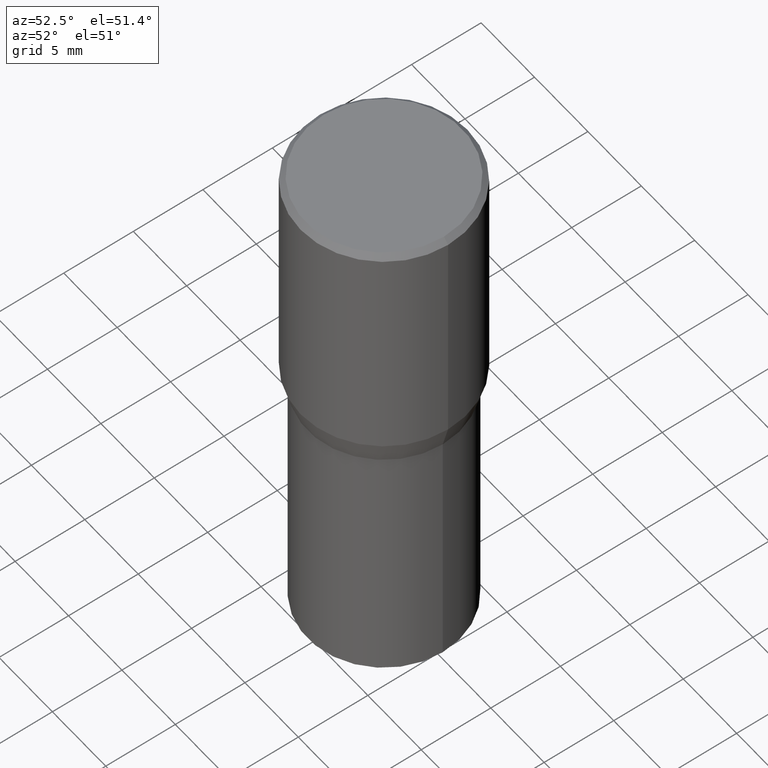
[diagram: clean part render]
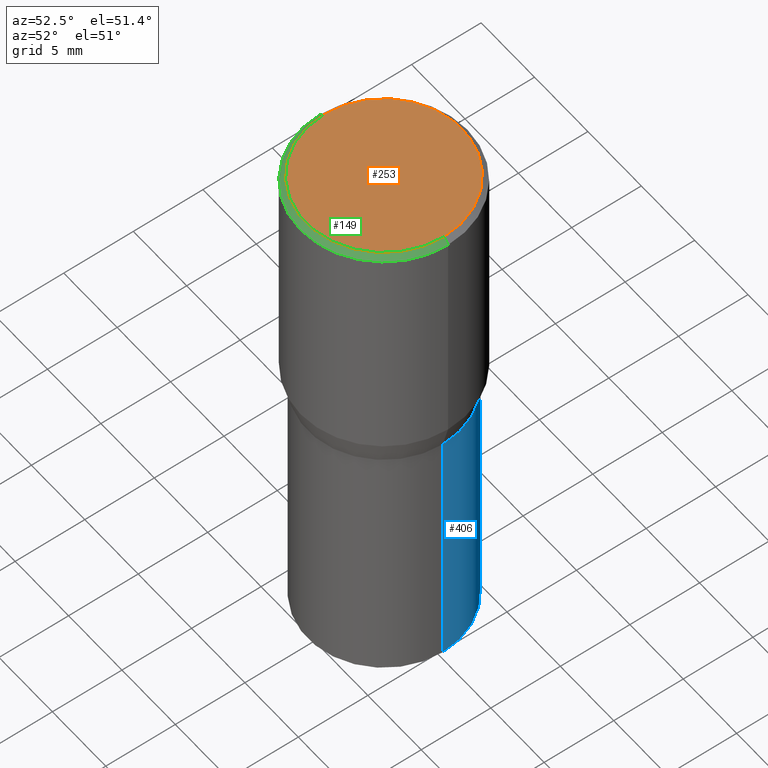
[diagram: same view with three faces highlighted in distinct colors, each labeled with its STEP entity id]
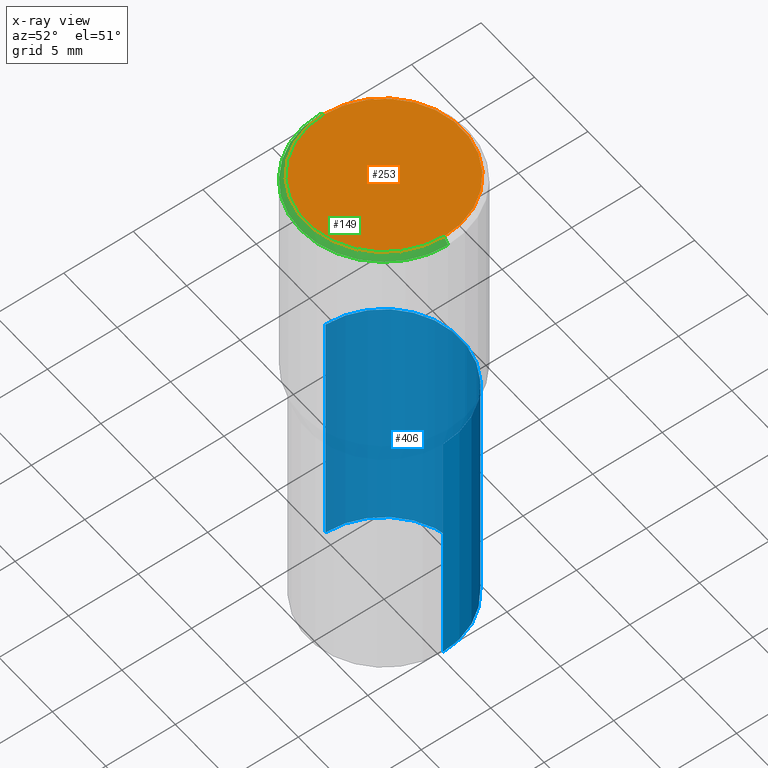
[diagram: x-ray of the same camera — body ghosted, the three highlighted faces saturated]
A machine part, auxiliary view with three faces highlighted in distinct colors.
The next image is the same camera in x-ray (body ghosted, the three faces saturated) — at least one of them is partly hidden behind the body in this view.
Their STEP definitions:

[orange] entity #253 — the highlighted planar face has unit normal (0, -0, -1).
#11 = CARTESIAN_POINT ( 'NONE',  ( 0.2212000000000000077, -1.595182002131672613E-15, 4.701447564593453210E-17 ) ) ;
#47 = FACE_OUTER_BOUND ( 'NONE', #426, .T. ) ;
#94 = VERTEX_POINT ( 'NONE', #138 ) ;
#106 = CIRCLE ( 'NONE', #328, 0.2212000000000000077 ) ;
#122 = DIRECTION ( 'NONE',  ( -2.445468806185136597E-29, 3.491481338843145583E-15, 1.000000000000000000 ) ) ;
#138 = CARTESIAN_POINT ( 'NONE',  ( -0.2212000000000000077, 1.570817454345525709E-15, 4.701447564591265970E-17 ) ) ;
#153 = DIRECTION ( 'NONE',  ( 1.000000000000000000, -6.982962677686267499E-15, 4.877828720335458505E-29 ) ) ;
#171 = ORIENTED_EDGE ( 'NONE', *, *, #303, .T. ) ;
#188 = DIRECTION ( 'NONE',  ( 2.438088387897960049E-29, -3.491481338843145188E-15, -1.000000000000000000 ) ) ;
#195 = DIRECTION ( 'NONE',  ( -2.445468806185136597E-29, 3.491481338843145583E-15, 1.000000000000000000 ) ) ;
#199 = AXIS2_PLACEMENT_3D ( 'NONE', #449, #122, #263 ) ;
#223 = DIRECTION ( 'NONE',  ( -1.000000000000000000, 6.982962677686265922E-15, -4.876176775795935793E-29 ) ) ;
#225 = PLANE ( 'NONE',  #230 ) ;
#230 = AXIS2_PLACEMENT_3D ( 'NONE', #368, #188, #223 ) ;
#253 = ADVANCED_FACE ( 'NONE', ( #47 ), #225, .F. ) ;
#263 = DIRECTION ( 'NONE',  ( 1.000000000000000000, -6.982962677686267499E-15, 4.877828720335458505E-29 ) ) ;
#269 = VERTEX_POINT ( 'NONE', #11 ) ;
#303 = EDGE_CURVE ( 'NONE', #94, #269, #106, .T. ) ;
#328 = AXIS2_PLACEMENT_3D ( 'NONE', #334, #195, #153 ) ;
#334 = CARTESIAN_POINT ( 'NONE',  ( -1.149724336312568549E-45, 1.641501643732376111E-31, 4.701447564592355584E-17 ) ) ;
#345 = EDGE_CURVE ( 'NONE', #269, #94, #460, .T. ) ;
#368 = CARTESIAN_POINT ( 'NONE',  ( 1.544631344304202170E-15, 0.2212000000000000077, -7.488084343291421542E-16 ) ) ;
#426 = EDGE_LOOP ( 'NONE', ( #171, #440 ) ) ;
#440 = ORIENTED_EDGE ( 'NONE', *, *, #345, .T. ) ;
#449 = CARTESIAN_POINT ( 'NONE',  ( -1.149724336312568549E-45, 1.641501643732376111E-31, 4.701447564592355584E-17 ) ) ;
#460 = CIRCLE ( 'NONE', #199, 0.2212000000000000077 ) ;

[blue] entity #406 — the highlighted cylindrical surface (partial cylindrical patch) has radius 5.5004 mm, axis along (-0, 0, 1).
#12 = DIRECTION ( 'NONE',  ( -2.445468806185136877E-29, 3.491481338843145188E-15, 1.000000000000000000 ) ) ;
#66 = EDGE_CURVE ( 'NONE', #79, #252, #308, .T. ) ;
#71 = ORIENTED_EDGE ( 'NONE', *, *, #447, .T. ) ;
#79 = VERTEX_POINT ( 'NONE', #170 ) ;
#97 = DIRECTION ( 'NONE',  ( -2.445468806185136597E-29, 3.491481338843145583E-15, 1.000000000000000000 ) ) ;
#115 = AXIS2_PLACEMENT_3D ( 'NONE', #290, #213, #257 ) ;
#126 = FACE_OUTER_BOUND ( 'NONE', #347, .T. ) ;
#143 = ORIENTED_EDGE ( 'NONE', *, *, #298, .T. ) ;
#146 = VERTEX_POINT ( 'NONE', #180 ) ;
#154 = LINE ( 'NONE', #446, #457 ) ;
#155 = VERTEX_POINT ( 'NONE', #403 ) ;
#161 = CARTESIAN_POINT ( 'NONE',  ( 3.668203209277704895E-29, -5.237222008264718177E-15, -1.500000000000000222 ) ) ;
#162 = DIRECTION ( 'NONE',  ( 1.000000000000000000, -6.982962677686266711E-15, 4.876176775795935793E-29 ) ) ;
#170 = CARTESIAN_POINT ( 'NONE',  ( 0.2165500000000000203, -4.137754534663007109E-15, -0.7520000000000001128 ) ) ;
#180 = CARTESIAN_POINT ( 'NONE',  ( -0.2165500000000000203, -2.392727693248884740E-15, -1.500000000000000222 ) ) ;
#213 = DIRECTION ( 'NONE',  ( -2.445468806185136597E-29, 3.491481338843145583E-15, 1.000000000000000000 ) ) ;
#220 = CARTESIAN_POINT ( 'NONE',  ( -0.2165500000000000203, -2.392727693248884740E-15, -0.7520000000000001128 ) ) ;
#231 = DIRECTION ( 'NONE',  ( -2.445468806185136877E-29, 3.491481338843145188E-15, 1.000000000000000000 ) ) ;
#234 = CARTESIAN_POINT ( 'NONE',  ( 0.000000000000000000, 0.000000000000000000, 0.000000000000000000 ) ) ;
#252 = VERTEX_POINT ( 'NONE', #220 ) ;
#257 = DIRECTION ( 'NONE',  ( 1.000000000000000000, -6.982962677686266711E-15, 0.000000000000000000 ) ) ;
#262 = CIRCLE ( 'NONE', #309, 0.2165500000000000203 ) ;
#270 = LINE ( 'NONE', #274, #433 ) ;
#274 = CARTESIAN_POINT ( 'NONE',  ( 0.2165500000000000203, -1.512160567852961217E-15, 1.055936080798610036E-29 ) ) ;
#290 = CARTESIAN_POINT ( 'NONE',  ( 1.838992542251222813E-29, -2.625593966810045497E-15, -0.7520000000000001128 ) ) ;
#298 = EDGE_CURVE ( 'NONE', #146, #252, #154, .T. ) ;
#308 = CIRCLE ( 'NONE', #115, 0.2165500000000000203 ) ;
#309 = AXIS2_PLACEMENT_3D ( 'NONE', #161, #381, #340 ) ;
#317 = ORIENTED_EDGE ( 'NONE', *, *, #364, .F. ) ;
#340 = DIRECTION ( 'NONE',  ( 1.000000000000000000, -6.982962677686264344E-15, 0.000000000000000000 ) ) ;
#347 = EDGE_LOOP ( 'NONE', ( #71, #143, #413, #317 ) ) ;
#348 = CYLINDRICAL_SURFACE ( 'NONE', #422, 0.2165500000000000203 ) ;
#364 = EDGE_CURVE ( 'NONE', #155, #79, #270, .T. ) ;
#381 = DIRECTION ( 'NONE',  ( -2.445468806185136597E-29, 3.491481338843145583E-15, 1.000000000000000000 ) ) ;
#403 = CARTESIAN_POINT ( 'NONE',  ( 0.2165500000000000203, -6.749382576117678999E-15, -1.500000000000000222 ) ) ;
#406 = ADVANCED_FACE ( 'NONE', ( #126 ), #348, .T. ) ;
#413 = ORIENTED_EDGE ( 'NONE', *, *, #66, .F. ) ;
#422 = AXIS2_PLACEMENT_3D ( 'NONE', #234, #97, #162 ) ;
#433 = VECTOR ( 'NONE', #231, 39.37007874015748143 ) ;
#446 = CARTESIAN_POINT ( 'NONE',  ( -0.2165500000000000203, 1.538680294288497096E-15, -1.065195393794699923E-29 ) ) ;
#447 = EDGE_CURVE ( 'NONE', #155, #146, #262, .T. ) ;
#457 = VECTOR ( 'NONE', #12, 39.37007874015748143 ) ;

[green] entity #149 — the highlighted conical surface has half-angle 45 deg.
#5 = VERTEX_POINT ( 'NONE', #408 ) ;
#7 = DIRECTION ( 'NONE',  ( -1.000000000000000000, 6.982962677686266711E-15, 0.000000000000000000 ) ) ;
#11 = CARTESIAN_POINT ( 'NONE',  ( 0.2212000000000000077, -1.595182002131672613E-15, 4.701447564593453210E-17 ) ) ;
#23 = CONICAL_SURFACE ( 'NONE', #87, 0.2361999999999999933, 0.7853981633974459475 ) ;
#42 = VERTEX_POINT ( 'NONE', #189 ) ;
#57 = ORIENTED_EDGE ( 'NONE', *, *, #118, .T. ) ;
#83 = DIRECTION ( 'NONE',  ( 0.7071067811865459074, -7.319954787623251312E-15, -0.7071067811865492381 ) ) ;
#87 = AXIS2_PLACEMENT_3D ( 'NONE', #323, #117, #7 ) ;
#94 = VERTEX_POINT ( 'NONE', #138 ) ;
#106 = CIRCLE ( 'NONE', #328, 0.2212000000000000077 ) ;
#117 = DIRECTION ( 'NONE',  ( 2.445468806185136597E-29, -3.491481338843145583E-15, -1.000000000000000000 ) ) ;
#118 = EDGE_CURVE ( 'NONE', #42, #5, #363, .T. ) ;
#138 = CARTESIAN_POINT ( 'NONE',  ( -0.2212000000000000077, 1.570817454345525709E-15, 4.701447564591265970E-17 ) ) ;
#148 = ORIENTED_EDGE ( 'NONE', *, *, #425, .T. ) ;
#149 = ADVANCED_FACE ( 'NONE', ( #255 ), #23, .T. ) ;
#153 = DIRECTION ( 'NONE',  ( 1.000000000000000000, -6.982962677686267499E-15, 4.877828720335458505E-29 ) ) ;
#159 = LINE ( 'NONE', #455, #370 ) ;
#187 = EDGE_LOOP ( 'NONE', ( #429, #465, #148, #57 ) ) ;
#189 = CARTESIAN_POINT ( 'NONE',  ( -0.2361999999999999933, 4.673423884151294145E-16, -0.01499999999999999944 ) ) ;
#195 = DIRECTION ( 'NONE',  ( -2.445468806185136597E-29, 3.491481338843145583E-15, 1.000000000000000000 ) ) ;
#197 = CARTESIAN_POINT ( 'NONE',  ( -0.2361999999999999933, 1.597003564386848854E-15, -0.01499999999999999944 ) ) ;
#202 = LINE ( 'NONE', #197, #352 ) ;
#255 = FACE_OUTER_BOUND ( 'NONE', #187, .T. ) ;
#269 = VERTEX_POINT ( 'NONE', #11 ) ;
#303 = EDGE_CURVE ( 'NONE', #94, #269, #106, .T. ) ;
#323 = CARTESIAN_POINT ( 'NONE',  ( 3.668203209277705088E-31, -5.237222008264718399E-17, -0.01499999999999999944 ) ) ;
#328 = AXIS2_PLACEMENT_3D ( 'NONE', #334, #195, #153 ) ;
#333 = EDGE_CURVE ( 'NONE', #269, #5, #159, .T. ) ;
#334 = CARTESIAN_POINT ( 'NONE',  ( -1.149724336312568549E-45, 1.641501643732376111E-31, 4.701447564592355584E-17 ) ) ;
#352 = VECTOR ( 'NONE', #418, 39.37007874015748143 ) ;
#355 = DIRECTION ( 'NONE',  ( -2.445468806185136597E-29, 3.491481338843145583E-15, 1.000000000000000000 ) ) ;
#362 = CARTESIAN_POINT ( 'NONE',  ( 3.668203209277705088E-31, -5.237222008264718399E-17, -0.01499999999999999944 ) ) ;
#363 = CIRCLE ( 'NONE', #450, 0.2361999999999999933 ) ;
#370 = VECTOR ( 'NONE', #83, 39.37007874015748143 ) ;
#408 = CARTESIAN_POINT ( 'NONE',  ( 0.2361999999999999933, -1.701748004552143407E-15, -0.01499999999999999944 ) ) ;
#418 = DIRECTION ( 'NONE',  ( -0.7071067811865459074, 2.468850131082239706E-15, -0.7071067811865492381 ) ) ;
#425 = EDGE_CURVE ( 'NONE', #94, #42, #202, .T. ) ;
#429 = ORIENTED_EDGE ( 'NONE', *, *, #333, .F. ) ;
#441 = DIRECTION ( 'NONE',  ( 1.000000000000000000, -6.982962677686266711E-15, 0.000000000000000000 ) ) ;
#450 = AXIS2_PLACEMENT_3D ( 'NONE', #362, #355, #441 ) ;
#455 = CARTESIAN_POINT ( 'NONE',  ( 0.2361999999999999933, -1.672821847156282947E-15, -0.01499999999999999944 ) ) ;
#465 = ORIENTED_EDGE ( 'NONE', *, *, #303, .F. ) ;